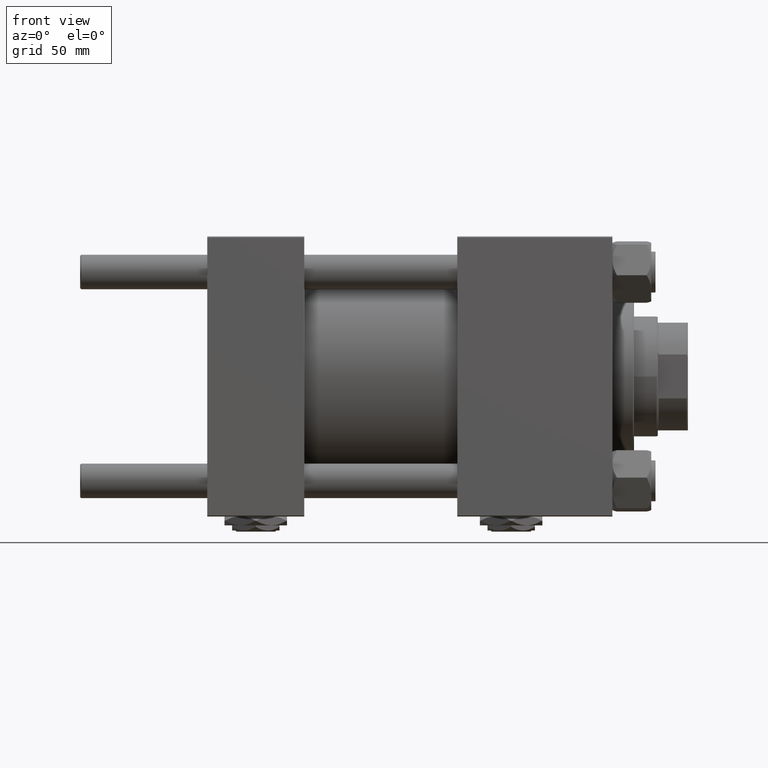
[diagram: clean part render]
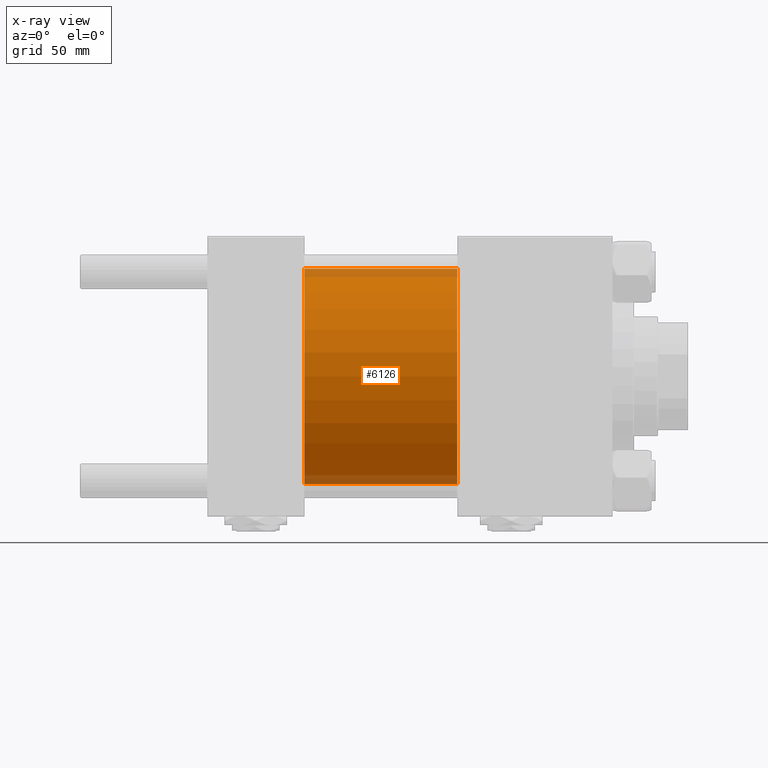
[diagram: x-ray — body ghosted, one internal face saturated and labeled with its STEP entity id]
A machine part, front view, then the same camera in x-ray: the body is ghosted and one INTERNAL B-rep face — a face not visible from any outside direction — is saturated and labeled: STEP entity #6126.
In plain terms, the highlighted cylindrical surface (partial cylindrical patch) has radius 50 mm, axis along (-1, -0, -0).
Its self-contained STEP definition (entity closure, byte-faithful):
#310 = CARTESIAN_POINT ( 'NONE',  ( 45.00000000000000000, 0.000000000000000000, 0.000000000000000000 ) ) ;
#1700 = AXIS2_PLACEMENT_3D ( 'NONE', #310, #11471, #8015 ) ;
#3637 = CYLINDRICAL_SURFACE ( 'NONE', #24719, 50.00000000000000000 ) ;
#4367 = EDGE_CURVE ( 'NONE', #30559, #29352, #17042, .T. ) ;
#5161 = EDGE_LOOP ( 'NONE', ( #17342, #7511, #13777, #10981 ) ) ;
#6126 = ADVANCED_FACE ( 'NONE', ( #12137 ), #3637, .F. ) ;
#7188 = CARTESIAN_POINT ( 'NONE',  ( 45.00000000000000000, 6.123233995736766085E-15, -50.00000000000000000 ) ) ;
#7511 = ORIENTED_EDGE ( 'NONE', *, *, #44464, .T. ) ;
#8015 = DIRECTION ( 'NONE',  ( 0.000000000000000000, 0.000000000000000000, -1.000000000000000000 ) ) ;
#8318 = CARTESIAN_POINT ( 'NONE',  ( 115.9999999999999858, 0.000000000000000000, 0.000000000000000000 ) ) ;
#9169 = DIRECTION ( 'NONE',  ( -1.000000000000000000, -0.000000000000000000, -0.000000000000000000 ) ) ;
#10591 = VERTEX_POINT ( 'NONE', #7188 ) ;
#10981 = ORIENTED_EDGE ( 'NONE', *, *, #35478, .F. ) ;
#11385 = VERTEX_POINT ( 'NONE', #13345 ) ;
#11471 = DIRECTION ( 'NONE',  ( 1.000000000000000000, 0.000000000000000000, 0.000000000000000000 ) ) ;
#12137 = FACE_OUTER_BOUND ( 'NONE', #5161, .T. ) ;
#12698 = CIRCLE ( 'NONE', #1700, 50.00000000000000000 ) ;
#13345 = CARTESIAN_POINT ( 'NONE',  ( 45.00000000000000000, 0.000000000000000000, 50.00000000000000000 ) ) ;
#13777 = ORIENTED_EDGE ( 'NONE', *, *, #51844, .F. ) ;
#14546 = CARTESIAN_POINT ( 'NONE',  ( 115.9999999999999858, 0.000000000000000000, 50.00000000000000000 ) ) ;
#15063 = LINE ( 'NONE', #14546, #25423 ) ;
#16808 = DIRECTION ( 'NONE',  ( 0.000000000000000000, 0.000000000000000000, -1.000000000000000000 ) ) ;
#17042 = CIRCLE ( 'NONE', #23815, 50.00000000000000000 ) ;
#17342 = ORIENTED_EDGE ( 'NONE', *, *, #4367, .T. ) ;
#20198 = CARTESIAN_POINT ( 'NONE',  ( 115.9999999999999858, 6.123233995736766085E-15, -50.00000000000000000 ) ) ;
#23815 = AXIS2_PLACEMENT_3D ( 'NONE', #8318, #40454, #16808 ) ;
#24719 = AXIS2_PLACEMENT_3D ( 'NONE', #36285, #36029, #52476 ) ;
#25423 = VECTOR ( 'NONE', #47450, 1000.000000000000000 ) ;
#29352 = VERTEX_POINT ( 'NONE', #20198 ) ;
#30559 = VERTEX_POINT ( 'NONE', #37928 ) ;
#35478 = EDGE_CURVE ( 'NONE', #30559, #11385, #15063, .T. ) ;
#36029 = DIRECTION ( 'NONE',  ( -1.000000000000000000, -0.000000000000000000, -0.000000000000000000 ) ) ;
#36285 = CARTESIAN_POINT ( 'NONE',  ( 115.9999999999999858, 0.000000000000000000, 0.000000000000000000 ) ) ;
#36303 = VECTOR ( 'NONE', #9169, 1000.000000000000000 ) ;
#37928 = CARTESIAN_POINT ( 'NONE',  ( 115.9999999999999858, 0.000000000000000000, 50.00000000000000000 ) ) ;
#40454 = DIRECTION ( 'NONE',  ( 1.000000000000000000, 0.000000000000000000, 0.000000000000000000 ) ) ;
#44464 = EDGE_CURVE ( 'NONE', #29352, #10591, #49782, .T. ) ;
#45549 = CARTESIAN_POINT ( 'NONE',  ( 115.9999999999999858, 6.123233995736766085E-15, -50.00000000000000000 ) ) ;
#47450 = DIRECTION ( 'NONE',  ( -1.000000000000000000, -0.000000000000000000, -0.000000000000000000 ) ) ;
#49782 = LINE ( 'NONE', #45549, #36303 ) ;
#51844 = EDGE_CURVE ( 'NONE', #11385, #10591, #12698, .T. ) ;
#52476 = DIRECTION ( 'NONE',  ( 0.000000000000000000, 0.000000000000000000, 1.000000000000000000 ) ) ;